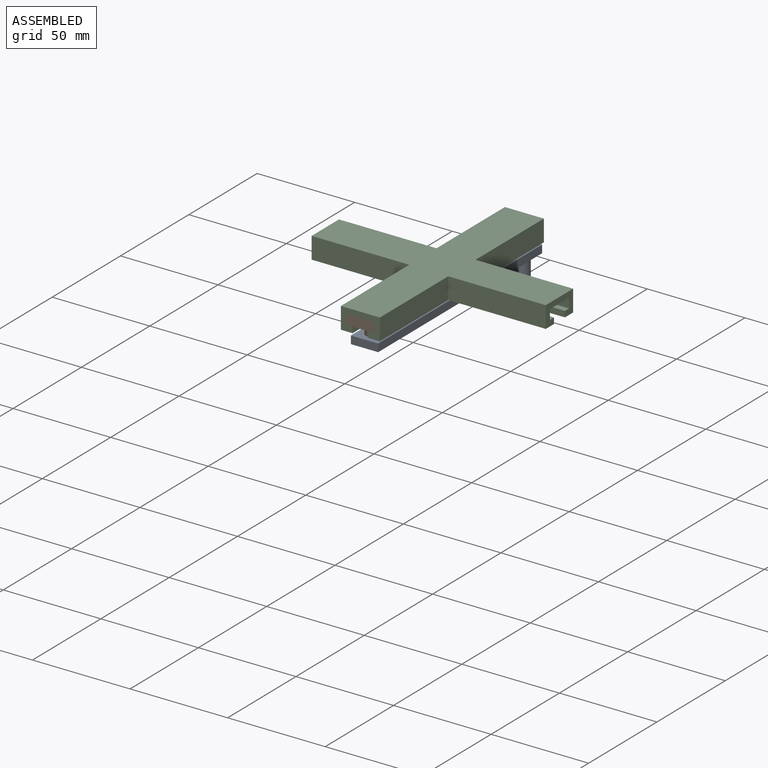
[diagram: assembled view]
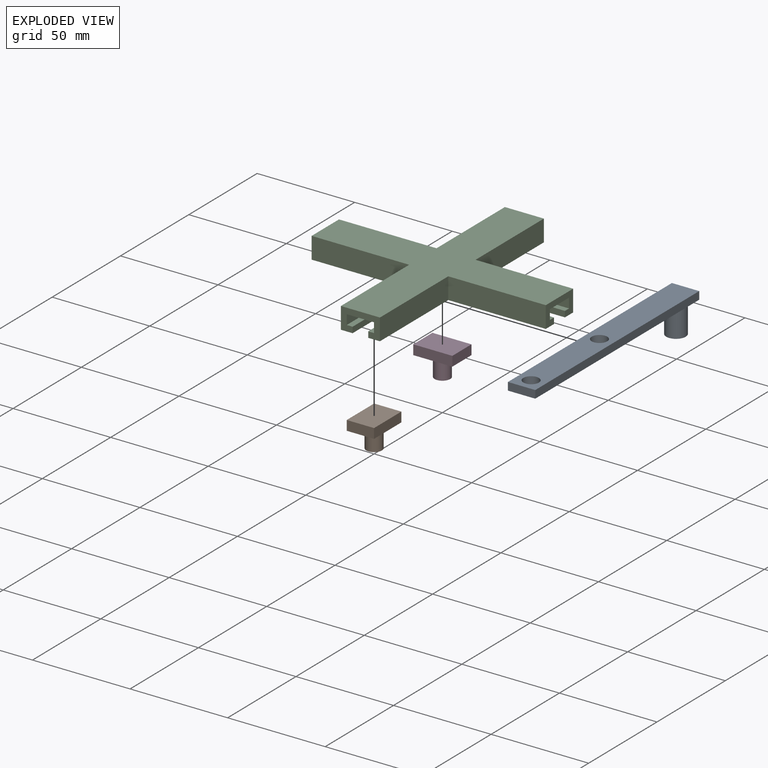
[diagram: exploded view]
GUIDED TOUR — MATED ASSEMBLY (Onshape document d7b063fed53d2d82dd338155, AutoMate assembly d7b063fed53d2d82dd338155_eafb05ccab9f8105abfac999_40d0eef6051d915d742714a9_default)

This assembly has 4 components, labeled P0..P3 below (a component is one placed occurrence of a part; the same part can appear more than once), held together by 4 mates. A mate is a constraint between two components; its type names the relative motion it leaves free:
  REVOLUTE — leaves rotation about the listed axis free (a hinge),
  SLIDER — leaves translation along the listed axis free.
Axis/direction vectors are unit vectors and 'through' points are millimeter coordinates, both in the assembly's world frame.

MATES
  1. REVOLUTE "Revolute 1": P1 <-> P0, axis (0.000, 0.000, -1.000) through (0.00, -50.00, -15.00) mm
  2. REVOLUTE "Revolute 2": P3 <-> P0, axis (0.000, 0.000, -1.000) through (0.00, 0.00, -15.00) mm
  3. SLIDER "Slider 2": P1 <-> P2, axis (0.000, -1.000, 0.000) through (-7.00, -50.00, 0.00) mm
  4. SLIDER "Slider 1": P3 <-> P2, axis (-1.000, 0.000, 0.000) through (0.00, 7.00, 0.00) mm

ASSEMBLY ORDER
  1. P2 — the base component [order verified]
  2. P3 [order verified]
  3. P1 [order verified]
  4. P0 [order verified]
Order-tag legend:
  [order verified] — this step's position reverses a verified removal order: the component was checked to insert without passing through the ones already placed.

Of the 4 components, 4 carry the full construction recipe — the FeatureScript program that regenerates the part's solid from scratch; the rest are supplied as boundary geometry only.
Each toured component is shown spotlighted twice — in the assembled view, then in the exploded view, where a leader line traces a displaced component back to its assembled socket (saturated green if recipe-attached, orange if geometry-only; every other component desaturated gray) — followed by its recipe or geometry summary and the mates that hold it.
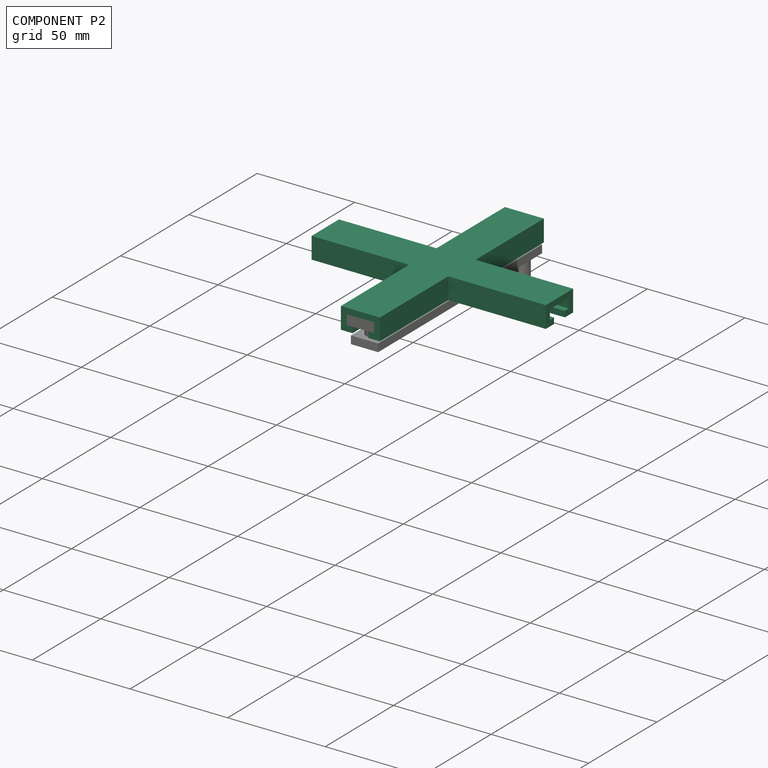
[diagram: component P2 — assembled]
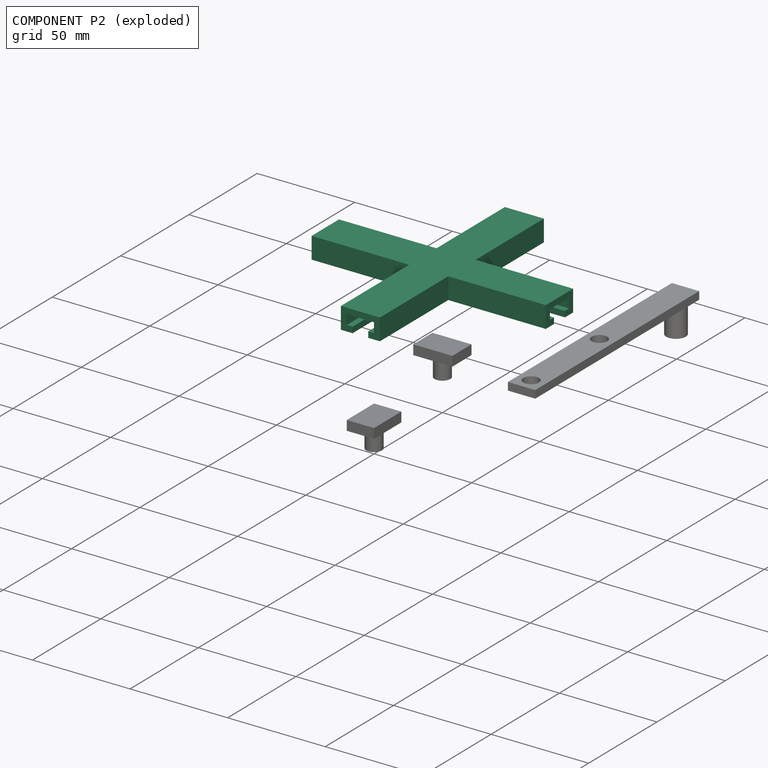
[diagram: component P2 — exploded]
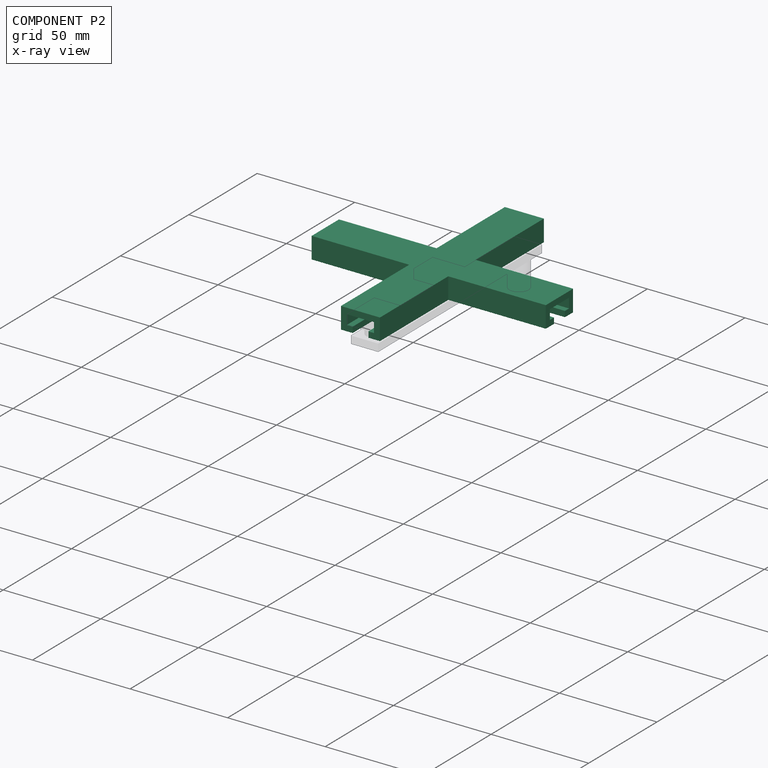
[diagram: component P2 — x-ray view]
COMPONENT P2 — recipe-attached (CADFS 00762010, mesh-verified: the recipe's output STEP matches this component's geometry to below the mesh-comparison resolution (tessellation chordal tolerance ~0.255 mm)).
Held by: SLIDER mate "Slider 2" to P1; SLIDER mate "Slider 1" to P3.
Construction recipe (FeatureScript — the CAD program that rebuilds this solid; sketch coordinates are in the units given by the * unit suffixes, e.g. mm):

FeatureScript 2279;
import(path : "onshape/std/geometry.fs", version : "2279.0");
import(path : "onshape/std/common.fs", version : "2279.0");
const mm = millimeter;
const VERTEX = EntityType.VERTEX;
const EDGE = EntityType.EDGE;
const FACE = EntityType.FACE;
const BODY = EntityType.BODY;
function v(x, y){return vector(x, y);}
function OD(order){return orderDisambiguation(order);}
function OSD(set){return originalSetDisambiguation(set);}
function TD(topology){return topologyDisambiguation(topology);}
function TDD(query){return trueDependencyDisambiguation(query);}
function sQuery(a, b, c) {return sketchEntityQuery(a, b, c);}

annotation { "Feature Type Name" : "Feature", "Feature Type Description" : "" }
export const myFeature = defineFeature(function(context is Context, id is Id, definition is map)
    precondition{}
    {
        {
            var Q0;
            Q0=qCreatedBy(makeId("Top.planeOp"),FACE);
            var sketch = newSketch(context, id + "F0", { "sketchPlane" : qUnion([Q0])});
            skLineSegment(sketch, "E0.bottom", {"start": v(10, -60) * mm, "end": v(-10, -60) * mm});
            skLineSegment(sketch, "E0.top", {"start": v(10, 60) * mm, "end": v(-10, 60) * mm});
            skLineSegment(sketch, "E0.left", {"start": v(10, -60) * mm, "end": v(10, -10) * mm});
            skLineSegment(sketch, "E0.right", {"start": v(-10, -60) * mm, "end": v(-10, -10) * mm});
            skPoint(sketch, "E0.middle", {"position": v(0, 0) * mm});
            skLineSegment(sketch, "E1.bottom", {"start": v(60, -10) * mm, "end": v(10, -10) * mm});
            skLineSegment(sketch, "E1.top", {"start": v(60, 10) * mm, "end": v(10, 10) * mm});
            skLineSegment(sketch, "E1.left", {"start": v(60, -10) * mm, "end": v(60, 10) * mm});
            skLineSegment(sketch, "E1.right", {"start": v(-60, -10) * mm, "end": v(-60, 10) * mm});
            skLineSegment(sketch, "E2.trimOffspring", {"start": v(-10, 10) * mm, "end": v(-60, 10) * mm});
            skLineSegment(sketch, "E3.trimOffspring", {"start": v(-10, 10) * mm, "end": v(-10, 60) * mm});
            skLineSegment(sketch, "E4.trimOffspring", {"start": v(-10, -10) * mm, "end": v(-60, -10) * mm});
            skLineSegment(sketch, "E5.trimOffspring", {"start": v(10, 10) * mm, "end": v(10, 60) * mm});
            skLineSegment(sketch, "E6.1", {"start": v(-7, 7) * mm, "end": v(-60, 7) * mm});
            skLineSegment(sketch, "E6.2", {"start": v(-7, 7) * mm, "end": v(-7, 60) * mm});
            skLineSegment(sketch, "E6.4", {"start": v(7, 7) * mm, "end": v(7, 60) * mm});
            skLineSegment(sketch, "E6.6", {"start": v(60, 7) * mm, "end": v(7, 7) * mm});
            skLineSegment(sketch, "E6.7", {"start": v(-7, -7) * mm, "end": v(-60, -7) * mm});
            skLineSegment(sketch, "E6.8", {"start": v(-7, -60) * mm, "end": v(-7, -7) * mm});
            skLineSegment(sketch, "E6.10", {"start": v(7, -60) * mm, "end": v(7, -7) * mm});
            skLineSegment(sketch, "E6.11", {"start": v(60, -7) * mm, "end": v(7, -7) * mm});
            skSolve(sketch);
        }
        {
            var Q0;
            Q0 = qSketchRegion(id + "F0", true);
            extrude(context, id + "F1", {"entities" : qUnion([Q0]), "depth" : 3 * mm, "offsetDistance" : 25 * mm});
        }
        {
            var Q0;
            {var subQ1=sQuery(id+"F0.wireOp",EDGE,"E1.top");Q0=makeQuery(id+"F0.imprint","IMPRINT",FACE,{"disambiguationData":[TD([[makeQuery(id+"F0.imprint","IMPRINT",EDGE,{"derivedFrom":subQ1}),1.0]])]});}
            var Q1;
            {var subQ1=sQuery(id+"F0.wireOp",EDGE,"E2.trimOffspring");Q1=makeQuery(id+"F0.imprint","IMPRINT",FACE,{"disambiguationData":[TD([[makeQuery(id+"F0.imprint","IMPRINT",EDGE,{"derivedFrom":subQ1}),1.0]])]});}
            var Q2;
            {var subQ1=sQuery(id+"F0.wireOp",EDGE,"E0.right");Q2=makeQuery(id+"F0.imprint","IMPRINT",FACE,{"disambiguationData":[TD([[makeQuery(id+"F0.imprint","IMPRINT",EDGE,{"derivedFrom":subQ1}),-1.0]])]});}
            var Q3;
            {var subQ1=sQuery(id+"F0.wireOp",EDGE,"E0.left");Q3=makeQuery(id+"F0.imprint","IMPRINT",FACE,{"disambiguationData":[TD([[makeQuery(id+"F0.imprint","IMPRINT",EDGE,{"derivedFrom":subQ1}),1.0]])]});}
            extrude(context, id + "F2", {"entities" : qUnion([Q0, Q1, Q2, Q3]), "operationType" : NewBodyOperationType.ADD, "oppositeDirection" : true, "depth" : 5 * mm, "offsetDistance" : 25 * mm});
        }
        {
            var Q0;
            Q0=makeQuery(id+"F2.opExtrude","CAP_FACE",FACE,{"disambiguationData":[OSD([sQuery(id+"F0.wireOp",EDGE,"E0.bottom"),sQuery(id+"F0.wireOp",EDGE,"E0.right"),sQuery(id+"F0.wireOp",EDGE,"E1.right"),sQuery(id+"F0.wireOp",EDGE,"E4.trimOffspring"),sQuery(id+"F0.wireOp",EDGE,"E6.7"),sQuery(id+"F0.wireOp",EDGE,"E6.8")])],"isStart":false});
            var sketch = newSketch(context, id + "F3", { "sketchPlane" : qUnion([Q0])});
            skLineSegment(sketch, "E7", {"start": v(-10, 60) * mm, "end": v(-10, 10) * mm});
            skLineSegment(sketch, "E8", {"start": v(-10, 10) * mm, "end": v(-60, 10) * mm});
            skLineSegment(sketch, "E9.0", {"start": v(-4, 60) * mm, "end": v(-4, 10) * mm});
            skLineSegment(sketch, "E10.0", {"start": v(-10, 4) * mm, "end": v(-60, 4) * mm});
            skLineSegment(sketch, "E11", {"start": v(-10, 60) * mm, "end": v(-4, 60) * mm});
            skLineSegment(sketch, "E12", {"start": v(-60, 10) * mm, "end": v(-60, 4) * mm});
            skLineSegment(sketch, "E13", {"start": v(-4, 10) * mm, "end": v(-4, 4) * mm});
            skLineSegment(sketch, "E14", {"start": v(-10, 4) * mm, "end": v(-4, 4) * mm});
            skLineSegment(sketch, "E15.MirrorCS", {"start": v(10, 60) * mm, "end": v(4, 60) * mm});
            skLineSegment(sketch, "E16.MirrorCS", {"start": v(60, 10) * mm, "end": v(60, 4) * mm});
            skLineSegment(sketch, "E17.MirrorCS", {"start": v(4, 10) * mm, "end": v(4, 4) * mm});
            skLineSegment(sketch, "E18.MirrorCS", {"start": v(10, 4) * mm, "end": v(4, 4) * mm});
            skLineSegment(sketch, "E19.MirrorCS", {"start": v(4, 60) * mm, "end": v(4, 10) * mm});
            skLineSegment(sketch, "E20.MirrorCS", {"start": v(10, 4) * mm, "end": v(60, 4) * mm});
            skLineSegment(sketch, "E21.MirrorCS", {"start": v(10, 10) * mm, "end": v(60, 10) * mm});
            skLineSegment(sketch, "E22.MirrorCS", {"start": v(10, 60) * mm, "end": v(10, 10) * mm});
            skLineSegment(sketch, "E23.MirrorCS", {"start": v(10, -4) * mm, "end": v(4, -4) * mm});
            skLineSegment(sketch, "E24.MirrorCS", {"start": v(10, -60) * mm, "end": v(4, -60) * mm});
            skLineSegment(sketch, "E25.MirrorCS", {"start": v(60, -10) * mm, "end": v(60, -4) * mm});
            skLineSegment(sketch, "E26.MirrorCS", {"start": v(4, -10) * mm, "end": v(4, -4) * mm});
            skLineSegment(sketch, "E27.MirrorCS", {"start": v(-10, -60) * mm, "end": v(-4, -60) * mm});
            skLineSegment(sketch, "E28.MirrorCS", {"start": v(-60, -10) * mm, "end": v(-60, -4) * mm});
            skLineSegment(sketch, "E29.MirrorCS", {"start": v(-10, -4) * mm, "end": v(-4, -4) * mm});
            skLineSegment(sketch, "E30.MirrorCS", {"start": v(-4, -10) * mm, "end": v(-4, -4) * mm});
            skLineSegment(sketch, "E31.MirrorCS", {"start": v(10, -4) * mm, "end": v(60, -4) * mm});
            skLineSegment(sketch, "E32.MirrorCS", {"start": v(10, -10) * mm, "end": v(60, -10) * mm});
            skLineSegment(sketch, "E33.MirrorCS", {"start": v(10, -60) * mm, "end": v(10, -10) * mm});
            skLineSegment(sketch, "E34.MirrorCS", {"start": v(4, -60) * mm, "end": v(4, -10) * mm});
            skLineSegment(sketch, "E35.MirrorCS", {"start": v(-10, -60) * mm, "end": v(-10, -10) * mm});
            skLineSegment(sketch, "E36.MirrorCS", {"start": v(-10, -10) * mm, "end": v(-60, -10) * mm});
            skLineSegment(sketch, "E37.MirrorCS", {"start": v(-4, -60) * mm, "end": v(-4, -10) * mm});
            skLineSegment(sketch, "E38.MirrorCS", {"start": v(-10, -4) * mm, "end": v(-60, -4) * mm});
            skSolve(sketch);
        }
        {
            var Q0;
            Q0 = qSketchRegion(id + "F3", true);
            extrude(context, id + "F4", {"entities" : qUnion([Q0]), "operationType" : NewBodyOperationType.ADD, "depth" : 3 * mm, "offsetDistance" : 25 * mm});
        }
    });
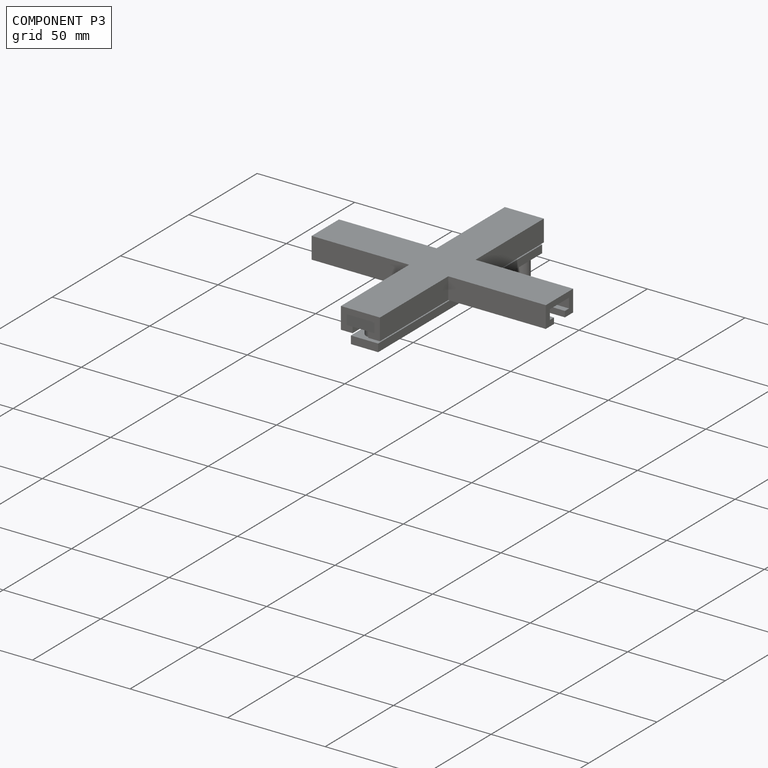
[diagram: component P3 — assembled]
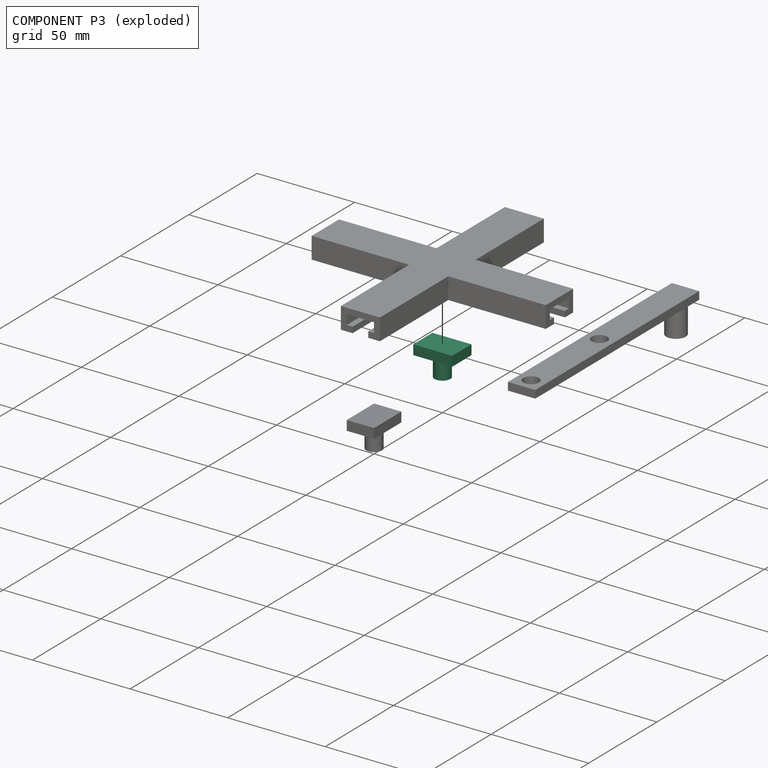
[diagram: component P3 — exploded]
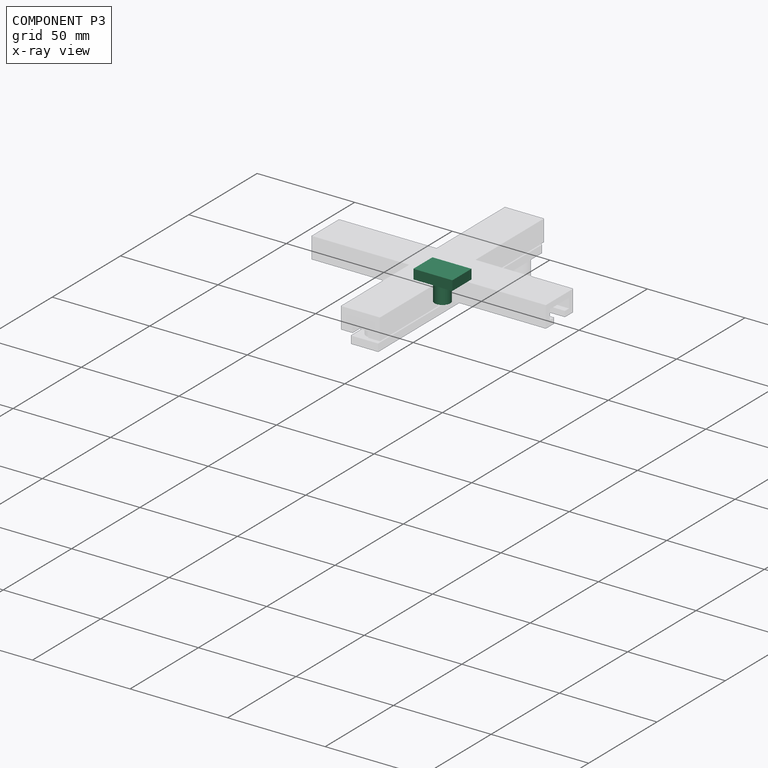
[diagram: component P3 — x-ray view]
COMPONENT P3 — same part as P1 (CADFS 00762012); its construction recipe is shown at P1.
Held by: REVOLUTE mate "Revolute 2" to P0; SLIDER mate "Slider 1" to P2.
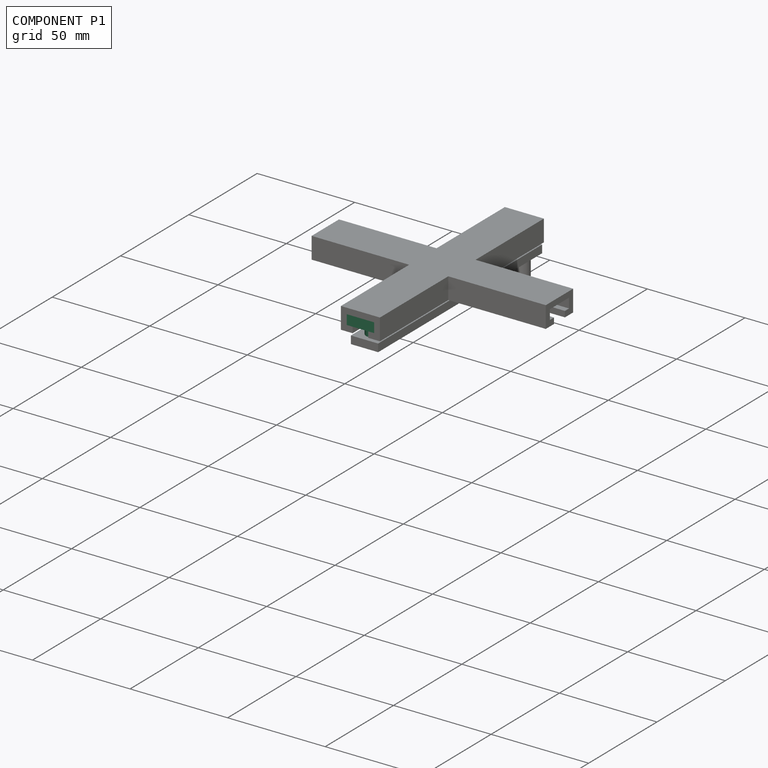
[diagram: component P1 — assembled]
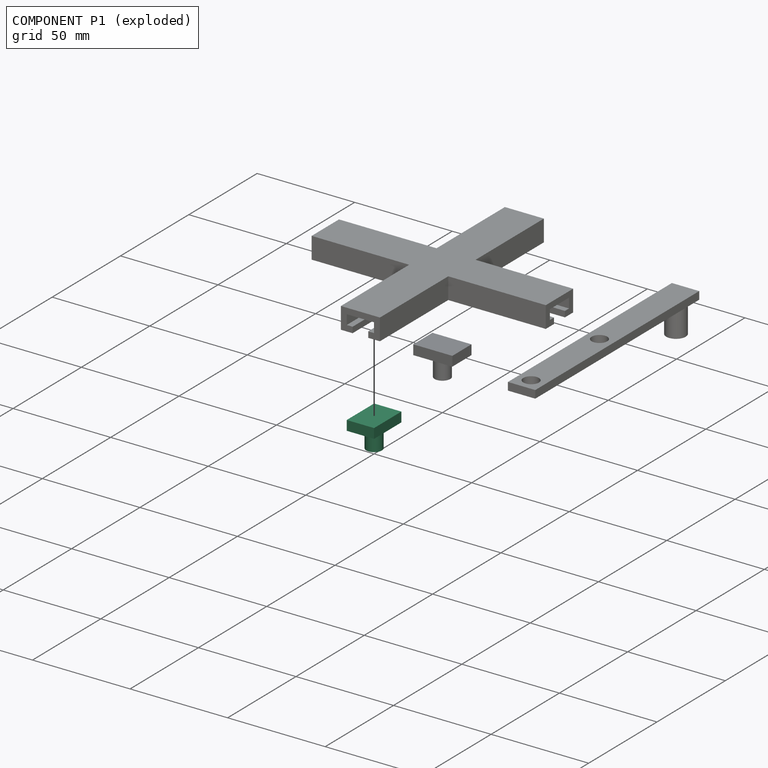
[diagram: component P1 — exploded]
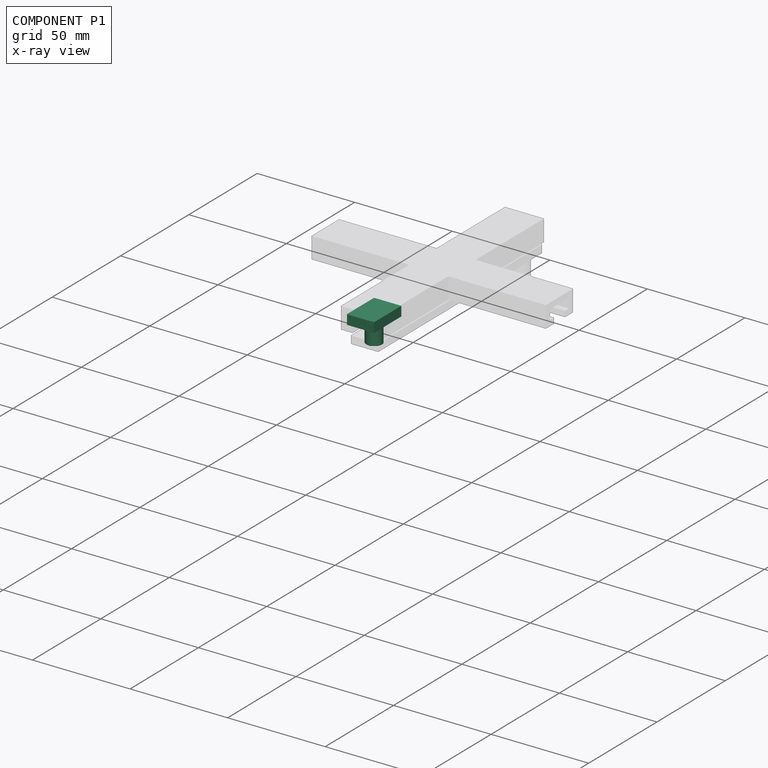
[diagram: component P1 — x-ray view]
COMPONENT P1 — recipe-attached (CADFS 00762012, mesh-verified: the recipe's output STEP matches this component's geometry to below the mesh-comparison resolution (tessellation chordal tolerance ~0.043 mm)).
Held by: REVOLUTE mate "Revolute 1" to P0; SLIDER mate "Slider 2" to P2.
Construction recipe (FeatureScript — the CAD program that rebuilds this solid; sketch coordinates are in the units given by the * unit suffixes, e.g. mm):

FeatureScript 2279;
import(path : "onshape/std/geometry.fs", version : "2279.0");
import(path : "onshape/std/common.fs", version : "2279.0");
const mm = millimeter;
const VERTEX = EntityType.VERTEX;
const EDGE = EntityType.EDGE;
const FACE = EntityType.FACE;
const BODY = EntityType.BODY;
function v(x, y){return vector(x, y);}
function OD(order){return orderDisambiguation(order);}
function OSD(set){return originalSetDisambiguation(set);}
function TD(topology){return topologyDisambiguation(topology);}
function TDD(query){return trueDependencyDisambiguation(query);}
function sQuery(a, b, c) {return sketchEntityQuery(a, b, c);}

annotation { "Feature Type Name" : "Feature", "Feature Type Description" : "" }
export const myFeature = defineFeature(function(context is Context, id is Id, definition is map)
    precondition{}
    {
        {
            var Q0;
            Q0=qCreatedBy(makeId("Top.planeOp"),FACE);
            var sketch = newSketch(context, id + "F0", { "sketchPlane" : qUnion([Q0])});
            skLineSegment(sketch, "E0.bottom", {"start": v(10, -7) * mm, "end": v(-10, -7) * mm});
            skLineSegment(sketch, "E0.top", {"start": v(10, 7) * mm, "end": v(-10, 7) * mm});
            skLineSegment(sketch, "E0.left", {"start": v(10, -7) * mm, "end": v(10, 7) * mm});
            skLineSegment(sketch, "E0.right", {"start": v(-10, -7) * mm, "end": v(-10, 7) * mm});
            skPoint(sketch, "E0.middle", {"position": v(0, 0) * mm});
            skCircle(sketch, "E1", {"center": v(0, 0) * mm, "radius": 4 * mm});
            skSolve(sketch);
        }
        {
            var Q0;
            Q0 = qSketchRegion(id + "F0", true);
            var Q1;
            Q1=makeQuery(id+"F0.imprint","IMPRINT",FACE,{"disambiguationData":[TD([[makeQuery(id+"F0.imprint","IMPRINT",EDGE,{"derivedFrom":sQuery(id+"F0.wireOp",EDGE,"E1")}),1.0]])]});
            extrude(context, id + "F1", {"entities" : qUnion([Q0, Q1]), "depth" : 5 * mm, "offsetDistance" : 25 * mm});
        }
        {
            var Q0;
            Q0=makeQuery(id+"F0.imprint","IMPRINT",FACE,{"disambiguationData":[TD([[makeQuery(id+"F0.imprint","IMPRINT",EDGE,{"derivedFrom":sQuery(id+"F0.wireOp",EDGE,"E1")}),1.0]])]});
            extrude(context, id + "F2", {"entities" : qUnion([Q0]), "operationType" : NewBodyOperationType.ADD, "oppositeDirection" : true, "depth" : 10 * mm, "offsetDistance" : 25 * mm});
        }
    });
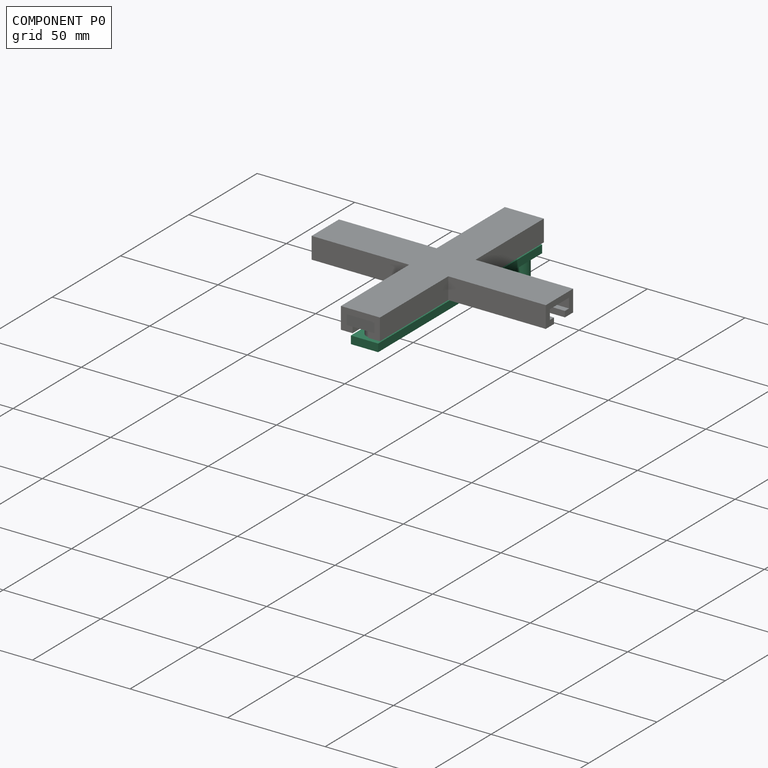
[diagram: component P0 — assembled]
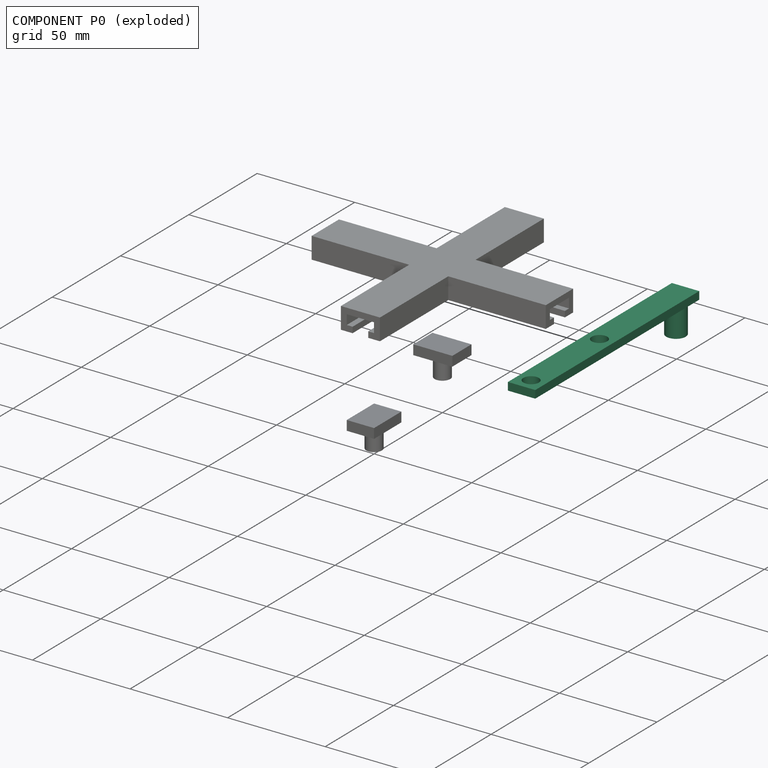
[diagram: component P0 — exploded]
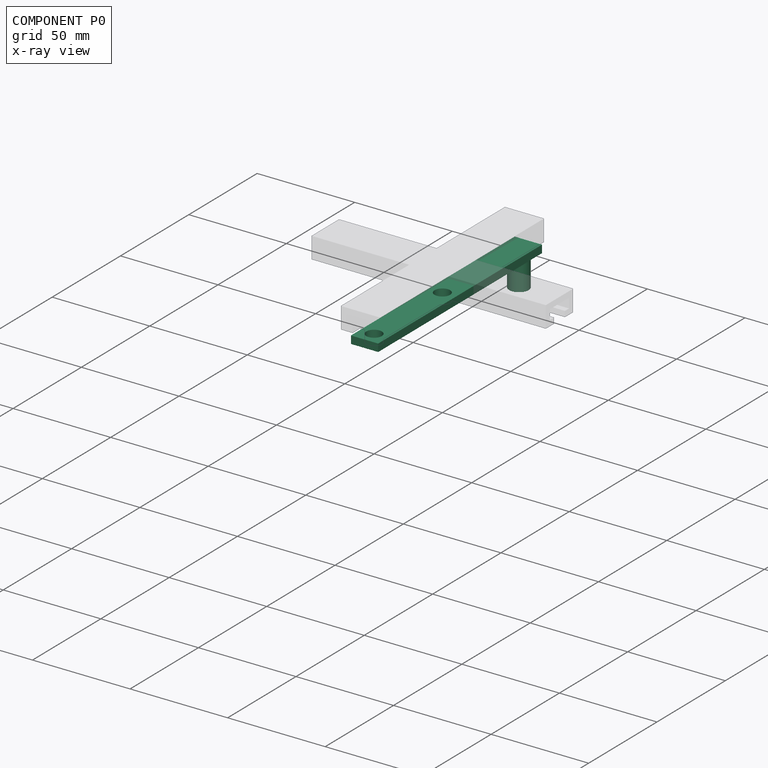
[diagram: component P0 — x-ray view]
COMPONENT P0 — recipe-attached (CADFS 00762013, mesh-verified: the recipe's output STEP matches this component's geometry to below the mesh-comparison resolution (tessellation chordal tolerance ~0.183 mm)).
Held by: REVOLUTE mate "Revolute 1" to P1; REVOLUTE mate "Revolute 2" to P3.
Construction recipe (FeatureScript — the CAD program that rebuilds this solid; sketch coordinates are in the units given by the * unit suffixes, e.g. mm):

FeatureScript 2279;
import(path : "onshape/std/geometry.fs", version : "2279.0");
import(path : "onshape/std/common.fs", version : "2279.0");
const mm = millimeter;
const VERTEX = EntityType.VERTEX;
const EDGE = EntityType.EDGE;
const FACE = EntityType.FACE;
const BODY = EntityType.BODY;
function v(x, y){return vector(x, y);}
function OD(order){return orderDisambiguation(order);}
function OSD(set){return originalSetDisambiguation(set);}
function TD(topology){return topologyDisambiguation(topology);}
function TDD(query){return trueDependencyDisambiguation(query);}
function sQuery(a, b, c) {return sketchEntityQuery(a, b, c);}

annotation { "Feature Type Name" : "Feature", "Feature Type Description" : "" }
export const myFeature = defineFeature(function(context is Context, id is Id, definition is map)
    precondition{}
    {
        {
            var Q0;
            Q0=qCreatedBy(makeId("Top.planeOp"),FACE);
            var sketch = newSketch(context, id + "F0", { "sketchPlane" : qUnion([Q0])});
            skLineSegment(sketch, "E0.bottom", {"start": v(60, -7) * mm, "end": v(-60, -7) * mm});
            skLineSegment(sketch, "E0.top", {"start": v(60, 7) * mm, "end": v(-60, 7) * mm});
            skLineSegment(sketch, "E0.left", {"start": v(60, -7) * mm, "end": v(60, 7) * mm});
            skLineSegment(sketch, "E0.right", {"start": v(-60, -7) * mm, "end": v(-60, 7) * mm});
            skPoint(sketch, "E0.middle", {"position": v(0, 0) * mm});
            skCircle(sketch, "E1", {"center": v(53, 0) * mm, "radius": 4 * mm});
            skCircle(sketch, "E2", {"center": v(3, 0) * mm, "radius": 4 * mm});
            skCircle(sketch, "E3", {"center": v(-53, 0) * mm, "radius": 5 * mm});
            skSolve(sketch);
        }
        {
            var Q0;
            Q0 = qSketchRegion(id + "F0", true);
            var Q1;
            Q1=makeQuery(id+"F0.imprint","IMPRINT",FACE,{"disambiguationData":[TD([[makeQuery(id+"F0.imprint","IMPRINT",EDGE,{"derivedFrom":sQuery(id+"F0.wireOp",EDGE,"E3")}),1.0]])]});
            extrude(context, id + "F1", {"entities" : qUnion([Q0, Q1]), "depth" : 4 * mm, "offsetDistance" : 25 * mm});
        }
        {
            var Q0;
            Q0=makeQuery(id+"F0.imprint","IMPRINT",FACE,{"disambiguationData":[TD([[makeQuery(id+"F0.imprint","IMPRINT",EDGE,{"derivedFrom":sQuery(id+"F0.wireOp",EDGE,"E3")}),1.0]])]});
            extrude(context, id + "F2", {"entities" : qUnion([Q0]), "operationType" : NewBodyOperationType.ADD, "oppositeDirection" : true, "depth" : 15 * mm, "offsetDistance" : 25 * mm});
        }
    });
PROVENANCE & LICENSES
Assembly (occurrences, transforms, mates, per-part STEP geometry): AutoMate dataset, Zenodo record 7776208, CC0.
Construction recipes: CADFS (HuggingFace VladPyatov/CADFS, CC-BY-4.0, layered over the ABC dataset), FeatureScript reconstruction programs keyed by ABC model id.
Join: ABC meta listings map ABC model id -> Onshape documentId; within a shared document, parts are matched by geometric signature (bounding-box dims + volume at 0.1% relative tolerance, exact B-rep face/solid counts).
Verification: 4 of this assembly's 4 components carry a recipe attachment, and every attachment is mesh-verified: the CADFS STEP and the AutoMate member STEP were compared as meshes in their shared local frame (symmetric sampled-point-to-mesh distance); worst across the 4 attachments: below the mesh-comparison resolution (tessellation chordal tolerance ~0.255 mm) on a 170 mm part.
Renders: orthographic iso camera (az 35 / el 25); the floor grid conveys scale (grid pitch printed in each image; no ruler). In the exploded view each component is displaced by its stored offset vector: the offsets alone carry the explosion direction (mate normal/axis signs are not orientation cues and do not encode it), and separation distances are assigned per mate-chain, not proportionally to assembly-order depth.
